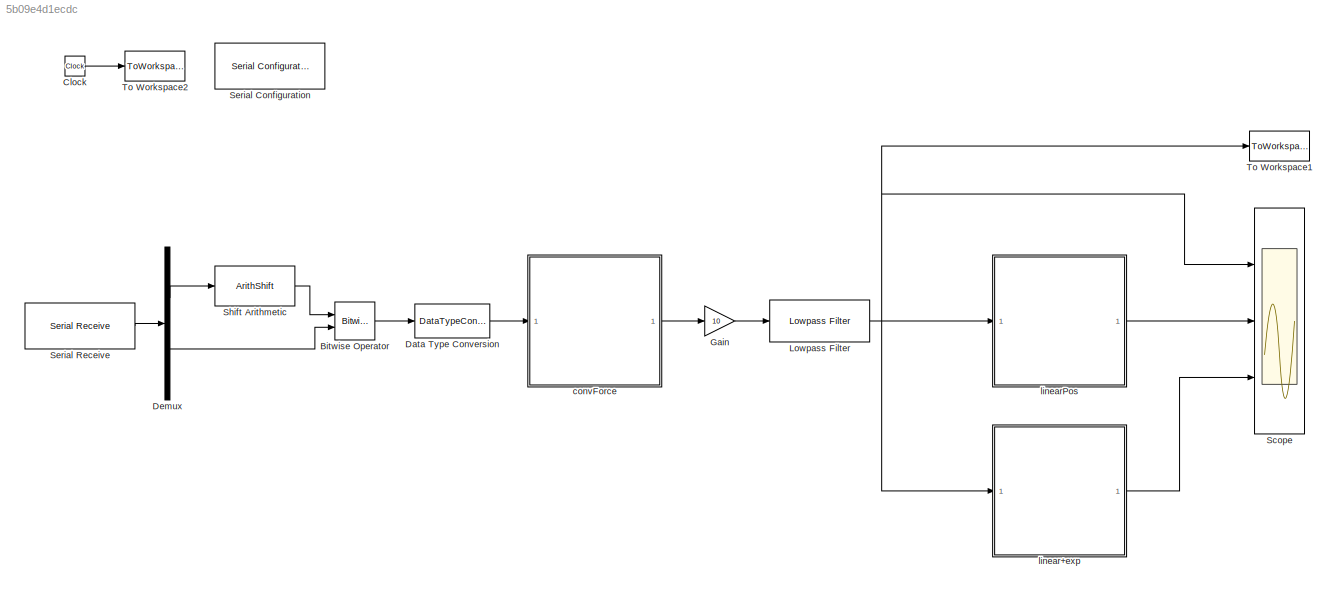
MODEL slx_5b09e4d1ecdc
KIND model
CONFIG AbsTol = auto
CONFIG EnableMultiTasking = off
CONFIG FixedStep = 0.01
CONFIG MaxStep = auto
CONFIG MinStep = auto
CONFIG RelTol = 1e-3
CONFIG SampleTimeConstraint = Unconstrained
CONFIG Solver = ode1
CONFIG SolverName = ode1
CONFIG StartTime = 0.0
CONFIG StopTime = inf
BLOCK [Reference] Bitwise Operator  REF=simulink/Logic and Bit
Operations/Bitwise
Operator
  Ports = [2, 1]
  SourceBlock = simulink/Logic and Bit\nOperations/Bitwise\nOperator
  SourceType = Bitwise Operator
BLOCK [Clock] Clock
BLOCK [DataTypeConversion] Data Type Conversion
  OutDataTypeStr = double
  RndMeth = Floor
  SaturateOnIntegerOverflow = off
BLOCK [Demux] Demux
  DisplayOption = bar
  Outputs = 2
  Ports = [1, 2]
BLOCK [Gain] Gain
  Gain = 10
  OutDataTypeStr = Inherit: Inherit via internal rule
  ParamDataTypeStr = Inherit: Inherit via internal rule
  SaturateOnIntegerOverflow = off
BLOCK [Reference] Lowpass Filter  REF=dspfdesign/Lowpass Filter
  Ports = [1, 1]
  SourceBlock = dspfdesign/Lowpass Filter
  SourceType = dsp.LowpassFilter
BLOCK [Scope] Scope
  NumInputPorts = 3
  Ports = [3]
  ScopeSpecificationString = Simulink.scopes.TimeScopeBlockCfg('CurrentConfiguration', extmgr.ConfigurationSet(extmgr.Configuration('Core','General UI',true),extmgr.Configuration('Core','Source UI',true),extmgr.Configuration('Sources','WiredSimulink',true,'DataLoggingSaveFormat','StructureWithTime'),extmgr.Configuration('Visuals','Time Domain',true,'SerializedDisplays',{struct('MinYLimReal','-0.08586','MaxYLimReal','6','YLabe...<+4711ch>
BLOCK [Reference] Serial Configuration  REF=instrumentlib/Serial Configuration
  Ports = []
  Priority = -200000
  SourceBlock = instrumentlib/Serial Configuration
  SourceType = Serial Configuration
BLOCK [Reference] Serial Receive  REF=instrumentlib/Serial Receive
  Ports = [0, 1]
  SourceBlock = instrumentlib/Serial Receive
  SourceType = Serial Receive
BLOCK [ArithShift] Shift Arithmetic
  BitShiftDirection = Left
  BitShiftNumber = 8
  InputPortMap = u0
  Ports = [1, 1]
BLOCK [ToWorkspace] To Workspace1
  FixptAsFi = on
  MaxDataPoints = inf
  Ports = [1]
  SampleTime = -1
  Save2DSignal = 2-D array (concatenate along first dimension)
  VariableName = force
BLOCK [ToWorkspace] To Workspace2
  FixptAsFi = on
  MaxDataPoints = inf
  Ports = [1]
  SampleTime = -1
  Save2DSignal = 2-D array (concatenate along first dimension)
  VariableName = time
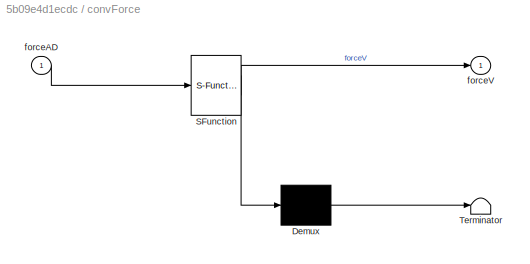
BLOCK [SubSystem] convForce
  ErrorFcn = Stateflow.Translate.translate
  PermitHierarchicalResolution = ExplicitOnly
  Ports = [1, 1]
  RequestExecContextInheritance = off
  SFBlockType = MATLAB Function
  TreatAsAtomicUnit = on
  Variant = off
BLOCK [Demux] convForce/ Demux 
  Outputs = 1
  Ports = [1, 1]
BLOCK [S-Function] convForce/ SFunction 
  EnableBusSupport = on
  FunctionName = sf_sfun
  PortCounts = [1 2]
  Ports = [1, 2]
  SFcnIsStateOwnerBlock = off
  SFunctionDeploymentMode = off
  Tag = Stateflow S-Function motorLearning 1
BLOCK [Terminator] convForce/ Terminator 
BLOCK [Inport] convForce/forceAD
  IconDisplay = Port number
BLOCK [Outport] convForce/forceV
  IconDisplay = Port number
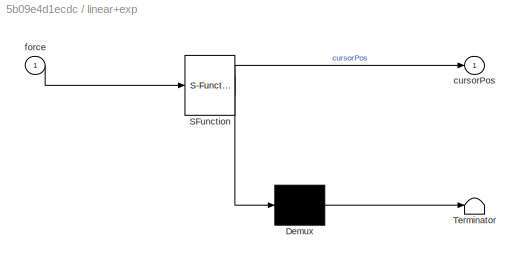
BLOCK [SubSystem] linear+exp
  ErrorFcn = Stateflow.Translate.translate
  PermitHierarchicalResolution = ExplicitOnly
  Ports = [1, 1]
  RequestExecContextInheritance = off
  SFBlockType = MATLAB Function
  TreatAsAtomicUnit = on
  Variant = off
BLOCK [Demux] linear+exp/ Demux 
  Outputs = 1
  Ports = [1, 1]
BLOCK [S-Function] linear+exp/ SFunction 
  EnableBusSupport = on
  FunctionName = sf_sfun
  PortCounts = [1 2]
  Ports = [1, 2]
  SFcnIsStateOwnerBlock = off
  SFunctionDeploymentMode = off
  Tag = Stateflow S-Function motorLearning 2
BLOCK [Terminator] linear+exp/ Terminator 
BLOCK [Outport] linear+exp/cursorPos
  IconDisplay = Port number
BLOCK [Inport] linear+exp/force
  IconDisplay = Port number
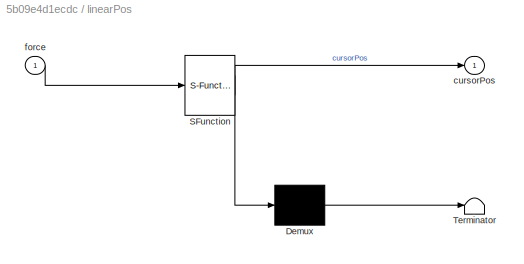
BLOCK [SubSystem] linearPos
  ErrorFcn = Stateflow.Translate.translate
  PermitHierarchicalResolution = ExplicitOnly
  Ports = [1, 1]
  RequestExecContextInheritance = off
  SFBlockType = MATLAB Function
  TreatAsAtomicUnit = on
  Variant = off
BLOCK [Demux] linearPos/ Demux 
  Outputs = 1
  Ports = [1, 1]
BLOCK [S-Function] linearPos/ SFunction 
  EnableBusSupport = on
  FunctionName = sf_sfun
  PortCounts = [1 2]
  Ports = [1, 2]
  SFcnIsStateOwnerBlock = off
  SFunctionDeploymentMode = off
  Tag = Stateflow S-Function motorLearning 3
BLOCK [Terminator] linearPos/ Terminator 
BLOCK [Outport] linearPos/cursorPos
  IconDisplay = Port number
BLOCK [Inport] linearPos/force
  IconDisplay = Port number
LINE Bitwise Operator:1 -> Data Type Conversion:1
LINE Clock:1 -> To Workspace2:1
LINE Data Type Conversion:1 -> convForce:1
LINE Demux:1 -> Shift Arithmetic:1
LINE Demux:2 -> Bitwise Operator:2
LINE Gain:1 -> Lowpass Filter:1
NET Lowpass Filter:1 -> Scope:1, To Workspace1:1, linear+exp:1, linearPos:1
LINE Serial Receive:1 -> Demux:1
LINE Shift Arithmetic:1 -> Bitwise Operator:1
LINE convForce:1 -> Gain:1
LINE linear+exp:1 -> Scope:3
LINE linearPos:1 -> Scope:2
note: NET lines group one-source signal fan-out (src -> all destinations, sorted); 1:1 wires keep LINE
CHART convForce states=1 transitions=1
  STATE_LABEL 'eML_blk_kernel()'
  STATE_LABEL 'SCRIPT:\nfunction forceV = convForce(forceAD)\n\nforceV = (forceAD*5) / (1023);'
CHART linear+exp states=1 transitions=1
  STATE_LABEL 'eML_blk_kernel()'
  STATE_LABEL 'SCRIPT:\nfunction cursorPos = convertPosition(force)\n\nminForce = 0;\nmaxForce = 5;\n\nminScreen = 10;\nmaxScreen = 1920;\n\np = polyfit([minForce,maxForce],[minScreen,maxScreen],1);\n\nif(force <= 2)\n    cursorPos = p(1)*force + p(2);\nelse\n    x = exp(force);    \n    xmin = exp(2);\n    xmax = exp(maxForce);\n    ymin=p(1)*2+p(2);\n    ymax=maxScreen;\n    cursorPos = ((x-xmin).*(ymax-ymin) ./ (xmax-xmin)) + y...<+13ch>'
CHART linearPos states=1 transitions=1
  STATE_LABEL 'eML_blk_kernel()'
  STATE_LABEL 'SCRIPT:\nfunction cursorPos = convertPosition(force)\n\nminForce = 0;\nmaxForce = 5;\n\nminScreen = 10;\nmaxScreen = 1920;\n\np = polyfit([minForce,maxForce],[minScreen,maxScreen],1);\n\ncursorPos = p(1)*force + p(2);\n   \nend\n'
